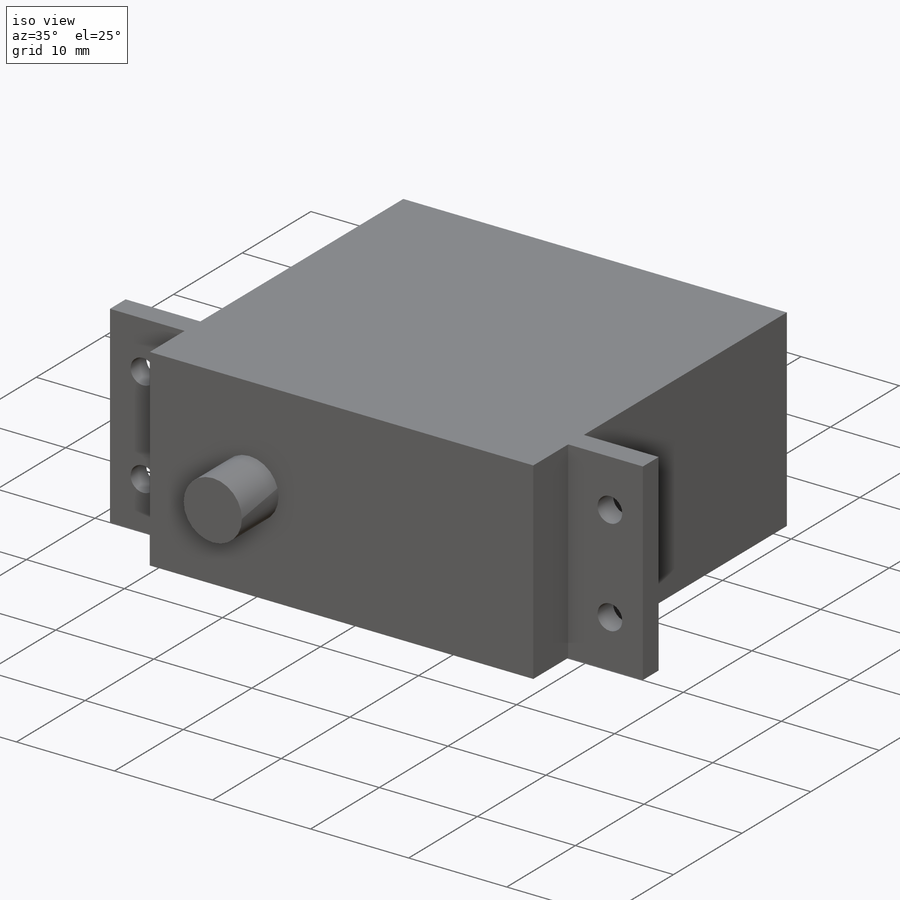
[diagram: iso view]
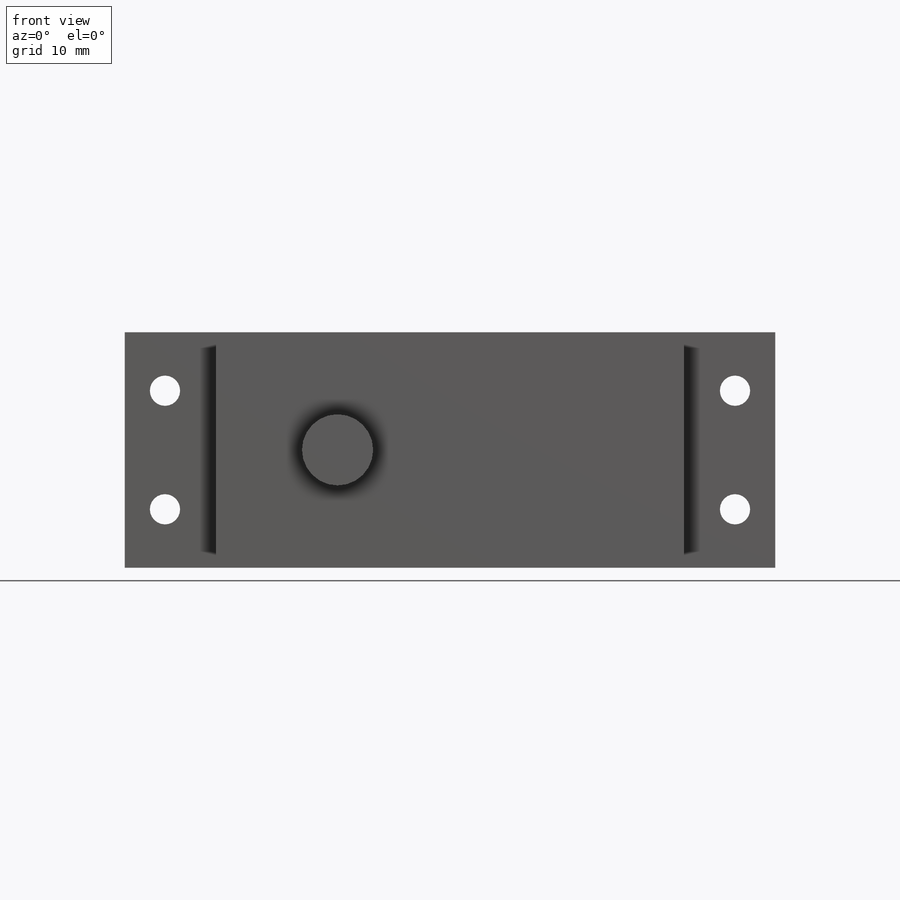
[diagram: front view]
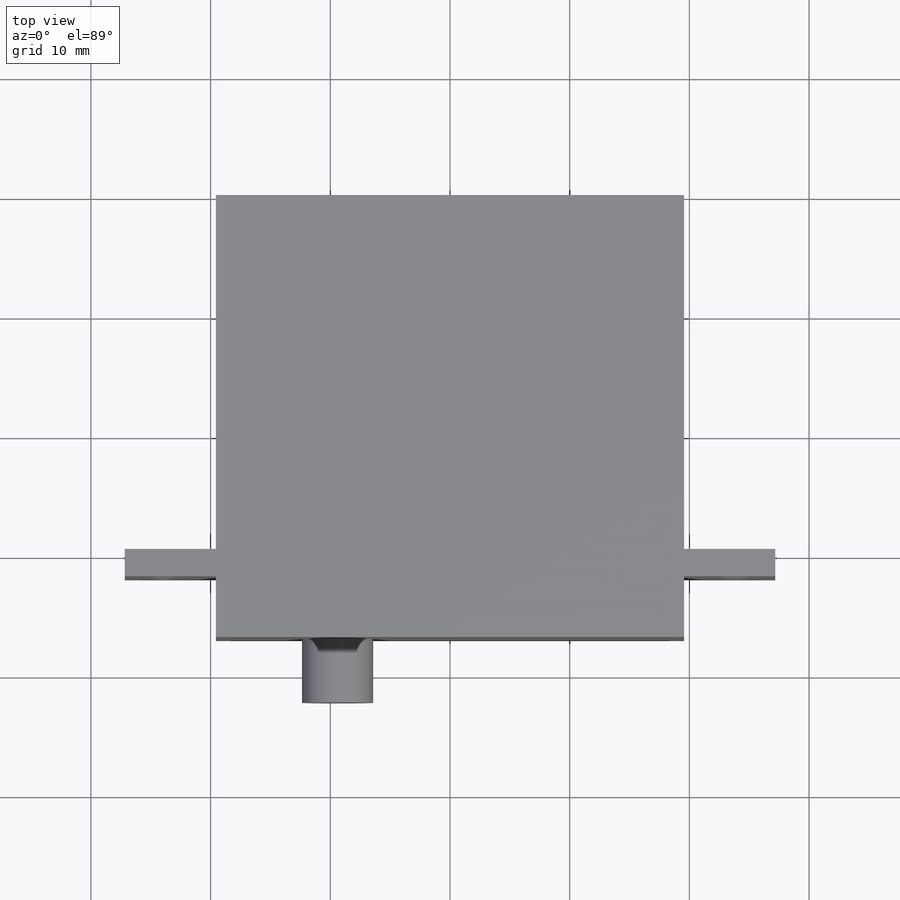
[diagram: top view]
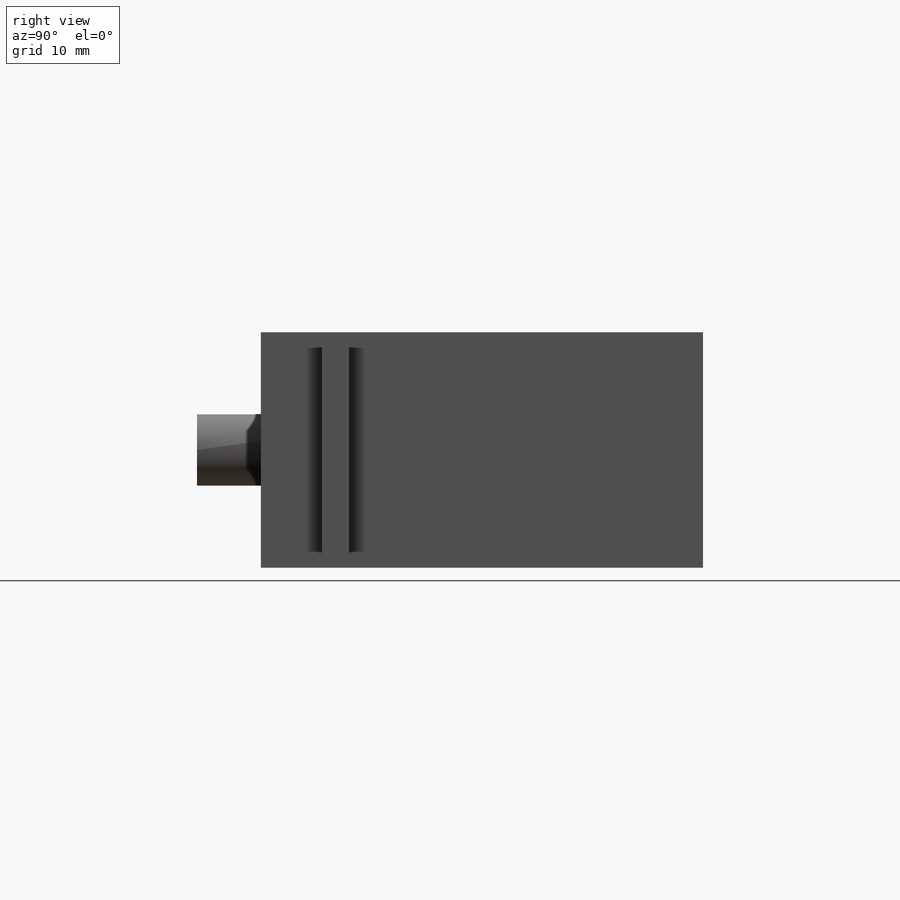
[diagram: right view]
SOLIDWORKS PART (.sldprt)
format: sldprt  version: not decoded by parser v0  size: 197,120 bytes
history: native  units: mm
features: sketch x7, cut_extrude x3, material x1, extrude x1, hole x1 (+16 scaffold rows collapsed)
feature tree (29):
  scaffold x16  (default folders/planes/origin — collapsed)
  material  "Material <not specified>"
  sketch  "Sketch1"  dims[D1=19.685mm]
  extrude  "Extrude1"  Depth=42.2656mm
  sketch  "Sketch3"  dims[D1=17.78mm]
  cut_extrude  "Extrude2"  Depth=5.334mm
  sketch  "Sketch7"  dims[D1=7.62mm]
  cut_extrude  "Extrude4"  Depth=10.414mm
  sketch  "Sketch8"  dims[D1=7.62mm]
  cut_extrude  "Extrude5"  Depth=29.5656mm
  sketch  "Sketch9"  dims[D1=9.906mm]
  hole  "#39 (0.0995) Diameter Hole1"  Diameter=2.5273mm Depth=12.7mm
  sketch  "3DSketch1"
  sketch  "Sketch10"  dims[hole-wizard template sketch: 47 standard entries collapsed; hole parameters kept: c15.Hole Depth=12.7mm c15.D3=~14.816244mm c15.Drill Angle=118.0deg]
decode coverage: 11 of 12 modeling features carry decoded parameters
note: ~ marks probable driven/reference dimensions
note: suppression state not decoded; provenance and decode notes live in map.json
